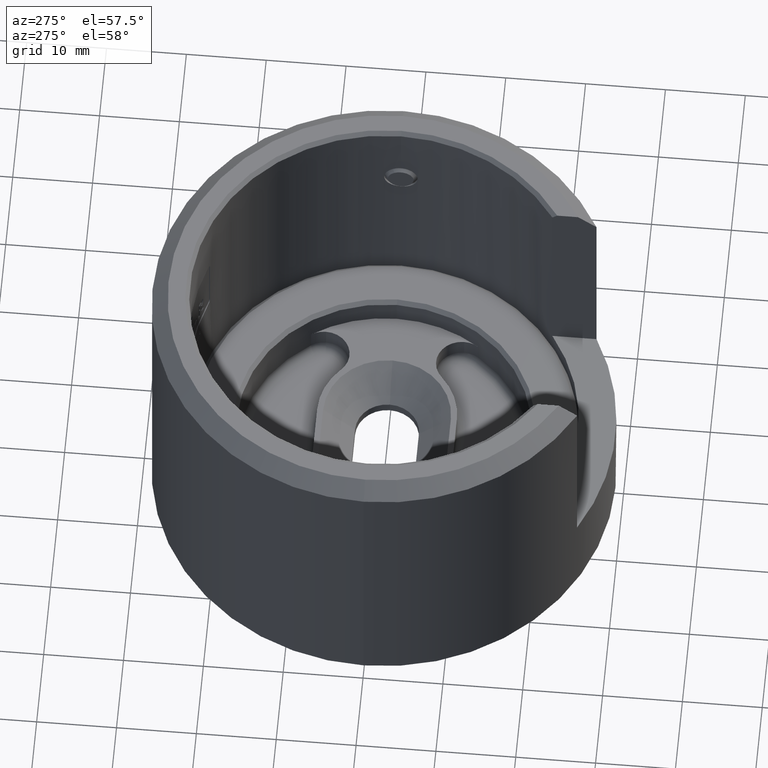
[diagram: clean part render]
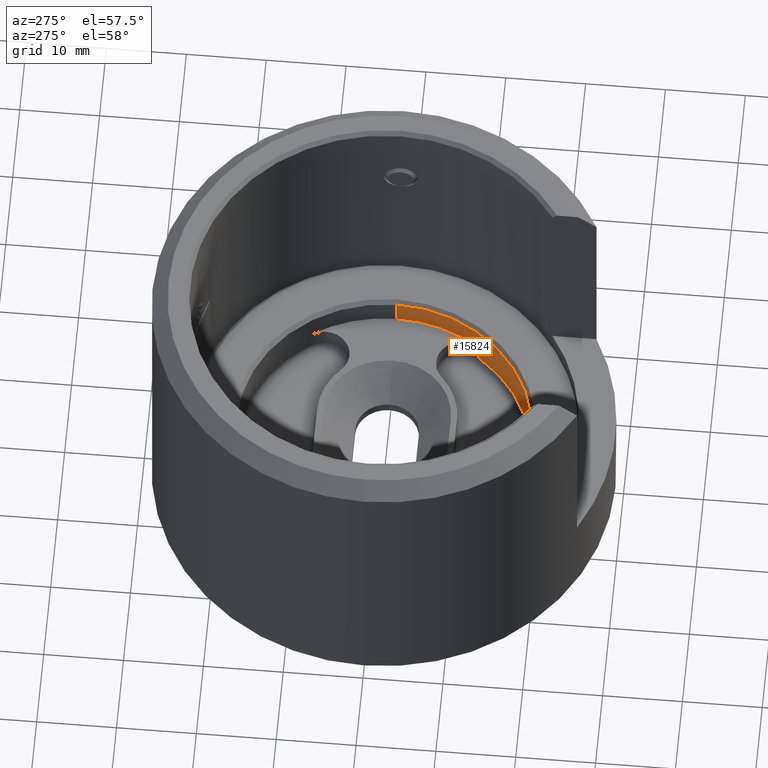
[diagram: same view with one face highlighted and labeled with its STEP entity id]
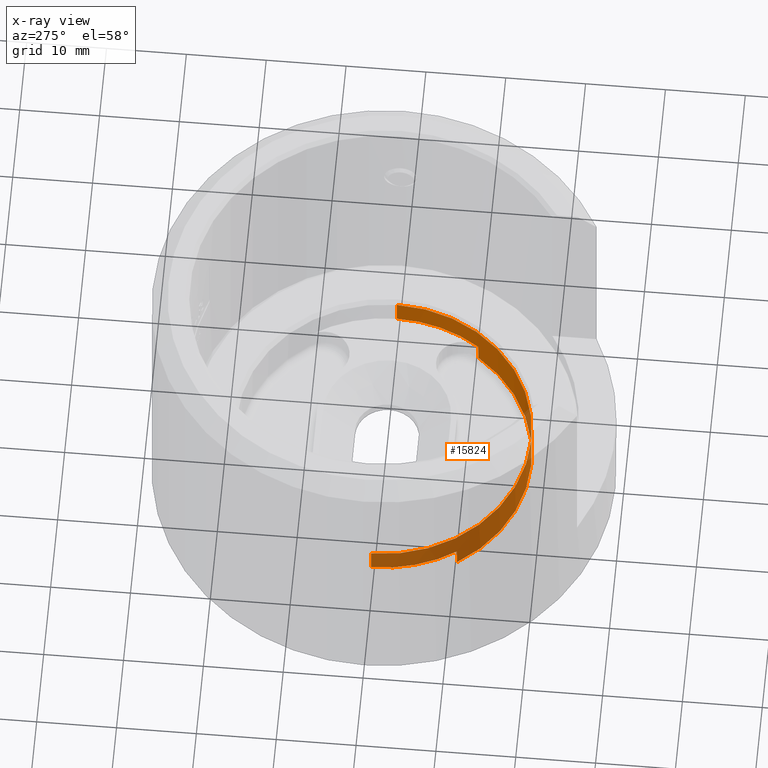
[diagram: x-ray of the same camera — body ghosted, the highlighted face saturated]
A machine part, auxiliary view. The second image highlights one B-rep face of the part: STEP entity #15824.
The next image is the same camera in x-ray: the body ghosted, the highlighted face saturated — about 58% of this face is hidden behind the body in this view.
In plain terms, the highlighted cylindrical surface (partial cylindrical patch) has radius 18.45 mm, axis along (0, 0, 1).
Its self-contained STEP definition (entity closure, byte-faithful):
#415 = ORIENTED_EDGE ( 'NONE', *, *, #21848, .T. ) ;
#519 = CIRCLE ( 'NONE', #13157, 18.44999999999999900 ) ;
#1599 = CARTESIAN_POINT ( 'NONE',  ( 18.44999999999999900, 0.0000000000000000000, 1.300000000000003400 ) ) ;
#1621 = CARTESIAN_POINT ( 'NONE',  ( 0.0000000000000000000, 0.0000000000000000000, 1.300000000000003400 ) ) ;
#2871 = AXIS2_PLACEMENT_3D ( 'NONE', #21543, #27988, #14827 ) ;
#3031 = CARTESIAN_POINT ( 'NONE',  ( -15.18941577349962600, -10.47302002575002600, -1.199999999999996600 ) ) ;
#3166 = ORIENTED_EDGE ( 'NONE', *, *, #13054, .F. ) ;
#3395 = FACE_OUTER_BOUND ( 'NONE', #28277, .T. ) ;
#4650 = CARTESIAN_POINT ( 'NONE',  ( -15.18941577349962600, -10.47302002575002600, -2.199999999999996600 ) ) ;
#4735 = ORIENTED_EDGE ( 'NONE', *, *, #21545, .T. ) ;
#4820 = LINE ( 'NONE', #13421, #28837 ) ;
#4824 = VECTOR ( 'NONE', #11241, 1000.000000000000000 ) ;
#5155 = CIRCLE ( 'NONE', #2871, 18.44999999999999900 ) ;
#5168 = CIRCLE ( 'NONE', #11042, 18.44999999999999900 ) ;
#5455 = DIRECTION ( 'NONE',  ( -0.0000000000000000000, -0.0000000000000000000, 1.000000000000000000 ) ) ;
#5980 = DIRECTION ( 'NONE',  ( -0.0000000000000000000, -0.0000000000000000000, 1.000000000000000000 ) ) ;
#7164 = EDGE_CURVE ( 'NONE', #7945, #27858, #21970, .T. ) ;
#7263 = CARTESIAN_POINT ( 'NONE',  ( -18.44999999999999900, 2.259473344426866300E-015, 4.499999999999985800 ) ) ;
#7922 = DIRECTION ( 'NONE',  ( 1.000000000000000000, 0.0000000000000000000, 0.0000000000000000000 ) ) ;
#7945 = VERTEX_POINT ( 'NONE', #27742 ) ;
#8089 = VERTEX_POINT ( 'NONE', #27845 ) ;
#8235 = LINE ( 'NONE', #19479, #18261 ) ;
#8881 = DIRECTION ( 'NONE',  ( -0.0000000000000000000, -0.0000000000000000000, 1.000000000000000000 ) ) ;
#11042 = AXIS2_PLACEMENT_3D ( 'NONE', #1621, #17075, #23706 ) ;
#11241 = DIRECTION ( 'NONE',  ( -0.0000000000000000000, -0.0000000000000000000, 1.000000000000000000 ) ) ;
#11533 = ORIENTED_EDGE ( 'NONE', *, *, #24078, .T. ) ;
#12695 = VERTEX_POINT ( 'NONE', #22438 ) ;
#12772 = CARTESIAN_POINT ( 'NONE',  ( 18.44999999999999900, 0.0000000000000000000, 4.499999999999985800 ) ) ;
#13054 = EDGE_CURVE ( 'NONE', #8089, #18891, #5168, .T. ) ;
#13157 = AXIS2_PLACEMENT_3D ( 'NONE', #28033, #25896, #14782 ) ;
#13421 = CARTESIAN_POINT ( 'NONE',  ( 18.44999999999999900, 0.0000000000000000000, 1.300000000000003400 ) ) ;
#14782 = DIRECTION ( 'NONE',  ( -1.000000000000000000, 0.0000000000000000000, 0.0000000000000000000 ) ) ;
#14827 = DIRECTION ( 'NONE',  ( -1.000000000000000000, 0.0000000000000000000, 0.0000000000000000000 ) ) ;
#15017 = ORIENTED_EDGE ( 'NONE', *, *, #7164, .F. ) ;
#15080 = VERTEX_POINT ( 'NONE', #7263 ) ;
#15450 = EDGE_CURVE ( 'NONE', #27858, #28683, #4820, .T. ) ;
#15824 = ADVANCED_FACE ( 'NONE', ( #3395 ), #23581, .F. ) ;
#17075 = DIRECTION ( 'NONE',  ( 0.0000000000000000000, 0.0000000000000000000, 1.000000000000000000 ) ) ;
#18261 = VECTOR ( 'NONE', #5980, 1000.000000000000000 ) ;
#18317 = LINE ( 'NONE', #23338, #19361 ) ;
#18497 = ORIENTED_EDGE ( 'NONE', *, *, #15450, .F. ) ;
#18738 = VERTEX_POINT ( 'NONE', #3031 ) ;
#18891 = VERTEX_POINT ( 'NONE', #19066 ) ;
#19013 = ORIENTED_EDGE ( 'NONE', *, *, #24237, .T. ) ;
#19066 = CARTESIAN_POINT ( 'NONE',  ( -15.18941577349961800, -10.47302002575001900, 1.300000000000003400 ) ) ;
#19361 = VECTOR ( 'NONE', #5455, 1000.000000000000000 ) ;
#19479 = CARTESIAN_POINT ( 'NONE',  ( 15.18941577349957200, -10.47302002575008300, -2.199999999999996600 ) ) ;
#19700 = CARTESIAN_POINT ( 'NONE',  ( 0.0000000000000000000, 0.0000000000000000000, 1.300000000000003400 ) ) ;
#19914 = CARTESIAN_POINT ( 'NONE',  ( 0.0000000000000000000, 0.0000000000000000000, 1.300000000000003400 ) ) ;
#21543 = CARTESIAN_POINT ( 'NONE',  ( 0.0000000000000000000, 0.0000000000000000000, 4.499999999999985800 ) ) ;
#21545 = EDGE_CURVE ( 'NONE', #18738, #18891, #22210, .T. ) ;
#21801 = AXIS2_PLACEMENT_3D ( 'NONE', #19914, #22144, #28868 ) ;
#21848 = EDGE_CURVE ( 'NONE', #15080, #28683, #5155, .T. ) ;
#21970 = CIRCLE ( 'NONE', #28352, 18.44999999999999900 ) ;
#22144 = DIRECTION ( 'NONE',  ( -0.0000000000000000000, -0.0000000000000000000, 1.000000000000000000 ) ) ;
#22210 = LINE ( 'NONE', #4650, #4824 ) ;
#22438 = CARTESIAN_POINT ( 'NONE',  ( 15.18941577349957200, -10.47302002575008300, -1.199999999999996600 ) ) ;
#23338 = CARTESIAN_POINT ( 'NONE',  ( -18.44999999999999900, 2.259473344426866300E-015, 1.300000000000003400 ) ) ;
#23581 = CYLINDRICAL_SURFACE ( 'NONE', #21801, 18.44999999999999900 ) ;
#23706 = DIRECTION ( 'NONE',  ( 1.000000000000000000, 0.0000000000000000000, 0.0000000000000000000 ) ) ;
#24078 = EDGE_CURVE ( 'NONE', #8089, #15080, #18317, .T. ) ;
#24237 = EDGE_CURVE ( 'NONE', #12695, #18738, #519, .T. ) ;
#24675 = ORIENTED_EDGE ( 'NONE', *, *, #24955, .F. ) ;
#24955 = EDGE_CURVE ( 'NONE', #12695, #7945, #8235, .T. ) ;
#25896 = DIRECTION ( 'NONE',  ( -0.0000000000000000000, -0.0000000000000000000, -1.000000000000000000 ) ) ;
#26327 = DIRECTION ( 'NONE',  ( 0.0000000000000000000, 0.0000000000000000000, 1.000000000000000000 ) ) ;
#27742 = CARTESIAN_POINT ( 'NONE',  ( 15.18941577349957200, -10.47302002575008300, 1.300000000000003400 ) ) ;
#27845 = CARTESIAN_POINT ( 'NONE',  ( -18.44999999999999900, 2.259473344426866300E-015, 1.300000000000003400 ) ) ;
#27858 = VERTEX_POINT ( 'NONE', #1599 ) ;
#27988 = DIRECTION ( 'NONE',  ( 0.0000000000000000000, 0.0000000000000000000, 1.000000000000000000 ) ) ;
#28033 = CARTESIAN_POINT ( 'NONE',  ( 0.0000000000000000000, 0.0000000000000000000, -1.199999999999996600 ) ) ;
#28277 = EDGE_LOOP ( 'NONE', ( #3166, #11533, #415, #18497, #15017, #24675, #19013, #4735 ) ) ;
#28352 = AXIS2_PLACEMENT_3D ( 'NONE', #19700, #26327, #7922 ) ;
#28683 = VERTEX_POINT ( 'NONE', #12772 ) ;
#28837 = VECTOR ( 'NONE', #8881, 1000.000000000000000 ) ;
#28868 = DIRECTION ( 'NONE',  ( 1.000000000000000000, 0.0000000000000000000, 0.0000000000000000000 ) ) ;